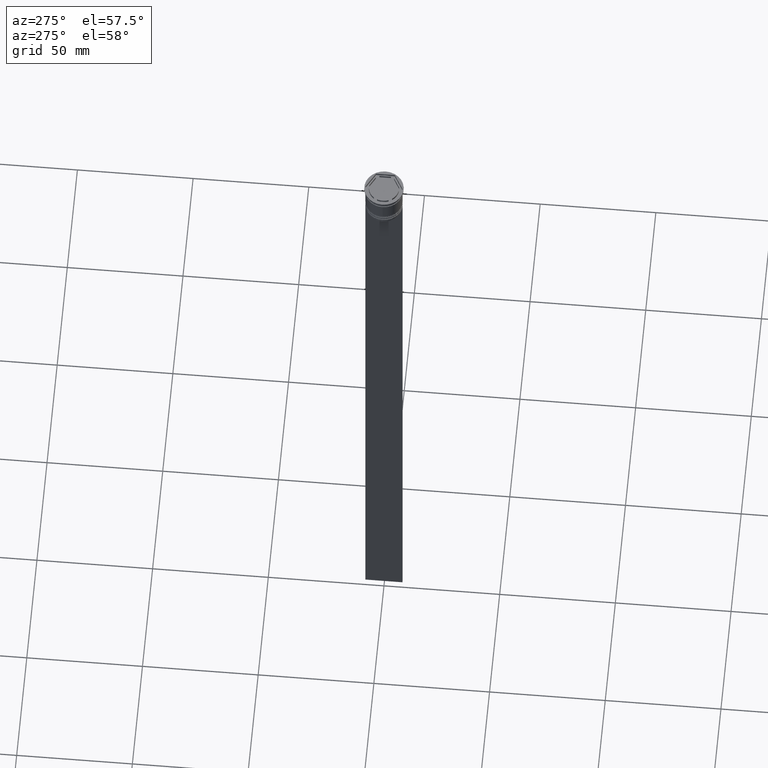
[diagram: clean part render]
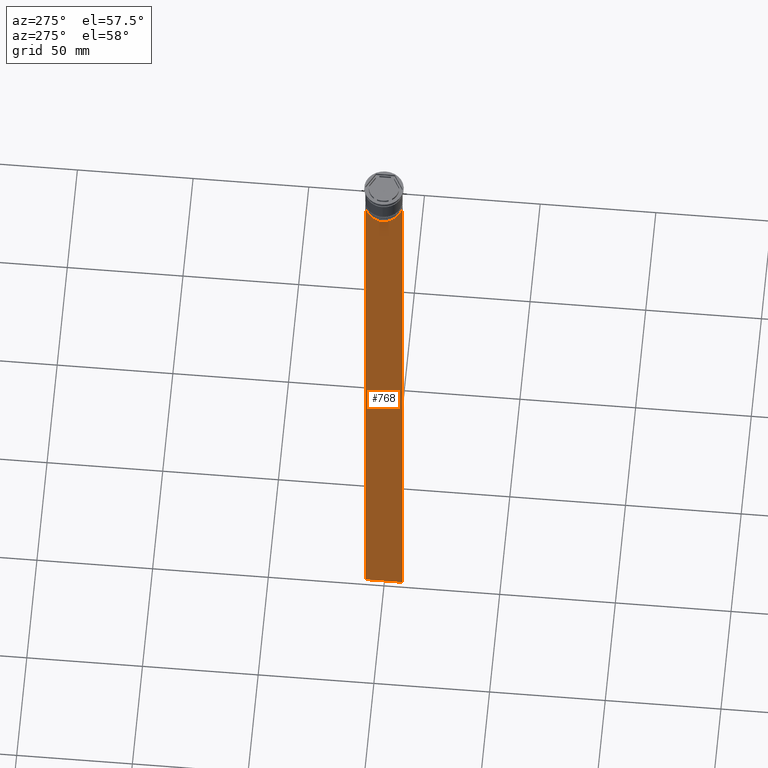
[diagram: same view with one face highlighted and labeled with its STEP entity id]
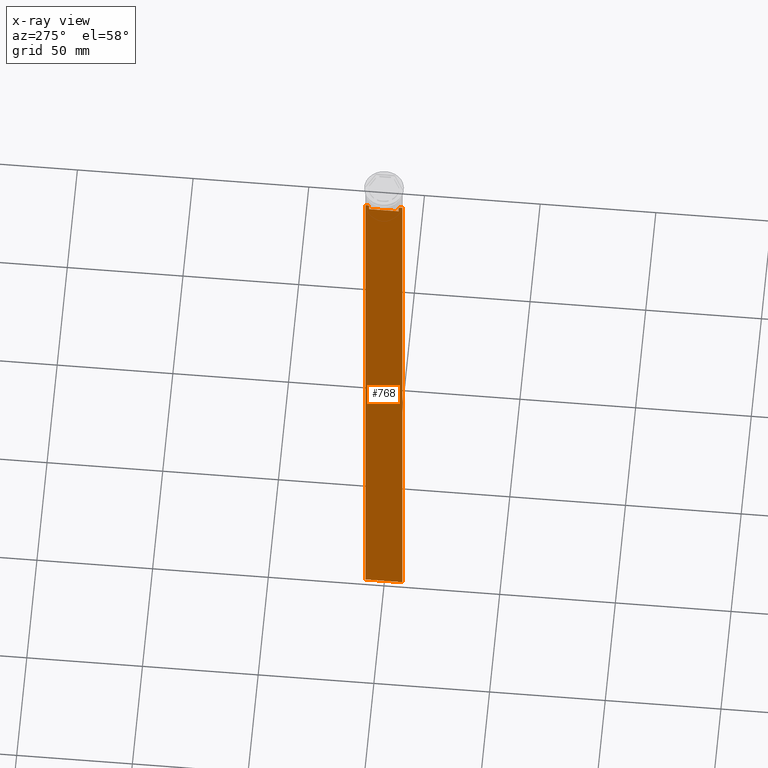
[diagram: x-ray of the same camera — body ghosted, the highlighted face saturated]
A machine part, auxiliary view. The second image highlights one B-rep face of the part: STEP entity #768.
The next image is the same camera in x-ray: the body ghosted, the highlighted face saturated — about 0% of this face is hidden behind the body in this view.
In plain terms, the highlighted planar face has unit normal (-1, 0, 0).
Its self-contained STEP definition (entity closure, byte-faithful):
#34 = DIRECTION ( 'NONE',  ( 0.000000000000000000, 0.000000000000000000, -1.000000000000000000 ) ) ;
#46 = VERTEX_POINT ( 'NONE', #1162 ) ;
#47 = CARTESIAN_POINT ( 'NONE',  ( -0.4999999999999998890, -6.714736947305992132, -14.16668390685738999 ) ) ;
#53 = LINE ( 'NONE', #257, #2484 ) ;
#57 = CARTESIAN_POINT ( 'NONE',  ( -0.4999999999999998890, -8.000000000000003553, -14.00000000000000178 ) ) ;
#59 = EDGE_CURVE ( 'NONE', #636, #2327, #1940, .T. ) ;
#82 = CARTESIAN_POINT ( 'NONE',  ( -0.4999999999999998890, 6.380438856379708312, -14.50000000000000000 ) ) ;
#101 = CARTESIAN_POINT ( 'NONE',  ( -0.4999999999999998890, -8.000000000000003553, -314.0000000000000000 ) ) ;
#102 = EDGE_CURVE ( 'NONE', #1215, #249, #484, .T. ) ;
#133 = CARTESIAN_POINT ( 'NONE',  ( -0.4999999999999998890, -6.881860213634098500, -14.00000000000000178 ) ) ;
#144 = DIRECTION ( 'NONE',  ( 0.000000000000000000, -1.000000000000000000, 0.000000000000000000 ) ) ;
#149 = CARTESIAN_POINT ( 'NONE',  ( -0.4999999999999998890, -8.000000000000003553, -14.00000000000000178 ) ) ;
#197 = VECTOR ( 'NONE', #2340, 1000.000000000000000 ) ;
#218 = CARTESIAN_POINT ( 'NONE',  ( -0.4999999999999998890, -8.000000000000003553, -14.00000000000000178 ) ) ;
#249 = VERTEX_POINT ( 'NONE', #2243 ) ;
#257 = CARTESIAN_POINT ( 'NONE',  ( -0.4999999999999998890, 6.399999999999999467, -17.00000000000000000 ) ) ;
#262 = CARTESIAN_POINT ( 'NONE',  ( -0.4999999999999998890, -6.380438856379708312, -14.50000000000000000 ) ) ;
#270 = ORIENTED_EDGE ( 'NONE', *, *, #1149, .F. ) ;
#319 = B_SPLINE_CURVE_WITH_KNOTS ( 'NONE', 3,
 ( #262, #810, #47, #1148 ),
 .UNSPECIFIED., .F., .F.,
 ( 4, 4 ),
 ( 0.02996184199614749730, 0.03067452609193703841 ),
 .UNSPECIFIED. ) ;
#329 = CARTESIAN_POINT ( 'NONE',  ( -0.4999999999999998890, -8.000000000000003553, -314.0000000000000000 ) ) ;
#337 = CARTESIAN_POINT ( 'NONE',  ( -0.4999999999999998890, 7.999999999999996447, -314.0000000000000000 ) ) ;
#350 = CARTESIAN_POINT ( 'NONE',  ( -0.4999999999999998890, -7.884161337770806632, -14.00000000000000178 ) ) ;
#398 = LINE ( 'NONE', #149, #722 ) ;
#425 = DIRECTION ( 'NONE',  ( 0.000000000000000000, 0.000000000000000000, -1.000000000000000000 ) ) ;
#462 = DIRECTION ( 'NONE',  ( -0.000000000000000000, -0.000000000000000000, 1.000000000000000000 ) ) ;
#481 = CARTESIAN_POINT ( 'NONE',  ( -0.4999999999999998890, 6.547597841304911626, -14.33335192459222718 ) ) ;
#484 = B_SPLINE_CURVE_WITH_KNOTS ( 'NONE', 3,
 ( #1795, #630, #481, #82 ),
 .UNSPECIFIED., .F., .F.,
 ( 4, 4 ),
 ( 0.01172465562756038263, 0.01243276816391822651 ),
 .UNSPECIFIED. ) ;
#485 = ORIENTED_EDGE ( 'NONE', *, *, #59, .F. ) ;
#510 = CARTESIAN_POINT ( 'NONE',  ( -0.4999999999999998890, 7.999999999999996447, 2.031219541881394530 ) ) ;
#557 = DIRECTION ( 'NONE',  ( 0.000000000000000000, -1.000000000000000000, 0.000000000000000000 ) ) ;
#580 = LINE ( 'NONE', #1927, #1635 ) ;
#630 = CARTESIAN_POINT ( 'NONE',  ( -0.4999999999999998890, 6.714736947114692711, -14.16668390704818847 ) ) ;
#636 = VERTEX_POINT ( 'NONE', #350 ) ;
#639 = DIRECTION ( 'NONE',  ( 0.000000000000000000, -1.000000000000000000, 0.000000000000000000 ) ) ;
#713 = VERTEX_POINT ( 'NONE', #1885 ) ;
#722 = VECTOR ( 'NONE', #557, 1000.000000000000000 ) ;
#740 = VERTEX_POINT ( 'NONE', #1178 ) ;
#768 = ADVANCED_FACE ( 'NONE', ( #783 ), #1956, .T. ) ;
#783 = FACE_OUTER_BOUND ( 'NONE', #1568, .T. ) ;
#810 = CARTESIAN_POINT ( 'NONE',  ( -0.4999999999999998890, -6.547597841511246131, -14.33335192438652328 ) ) ;
#832 = AXIS2_PLACEMENT_3D ( 'NONE', #2121, #1570, #1165 ) ;
#833 = VERTEX_POINT ( 'NONE', #2223 ) ;
#845 = ORIENTED_EDGE ( 'NONE', *, *, #1696, .F. ) ;
#863 = LINE ( 'NONE', #510, #1642 ) ;
#927 = VERTEX_POINT ( 'NONE', #133 ) ;
#939 = EDGE_CURVE ( 'NONE', #46, #1215, #2039, .T. ) ;
#1012 = ORIENTED_EDGE ( 'NONE', *, *, #2085, .F. ) ;
#1034 = ORIENTED_EDGE ( 'NONE', *, *, #1790, .T. ) ;
#1072 = VECTOR ( 'NONE', #2092, 1000.000000000000000 ) ;
#1148 = CARTESIAN_POINT ( 'NONE',  ( -0.4999999999999998890, -6.881860213634098500, -14.00000000000000178 ) ) ;
#1149 = EDGE_CURVE ( 'NONE', #2327, #2372, #580, .T. ) ;
#1150 = VECTOR ( 'NONE', #144, 1000.000000000000000 ) ;
#1162 = CARTESIAN_POINT ( 'NONE',  ( -0.4999999999999998890, 7.884161337770806632, -14.00000000000000178 ) ) ;
#1165 = DIRECTION ( 'NONE',  ( 0.000000000000000000, 0.000000000000000000, 1.000000000000000000 ) ) ;
#1167 = LINE ( 'NONE', #2494, #1998 ) ;
#1169 = VERTEX_POINT ( 'NONE', #1281 ) ;
#1177 = LINE ( 'NONE', #1569, #2442 ) ;
#1178 = CARTESIAN_POINT ( 'NONE',  ( -0.4999999999999998890, 7.999999999999996447, -14.00000000000000178 ) ) ;
#1184 = VERTEX_POINT ( 'NONE', #337 ) ;
#1215 = VERTEX_POINT ( 'NONE', #2460 ) ;
#1259 = EDGE_CURVE ( 'NONE', #927, #636, #1167, .T. ) ;
#1264 = ORIENTED_EDGE ( 'NONE', *, *, #2102, .F. ) ;
#1281 = CARTESIAN_POINT ( 'NONE',  ( -0.4999999999999998890, -6.380438856379708312, -14.50000000000000000 ) ) ;
#1298 = ORIENTED_EDGE ( 'NONE', *, *, #939, .F. ) ;
#1377 = ORIENTED_EDGE ( 'NONE', *, *, #1259, .F. ) ;
#1396 = EDGE_CURVE ( 'NONE', #833, #1169, #1820, .T. ) ;
#1509 = VECTOR ( 'NONE', #462, 1000.000000000000000 ) ;
#1568 = EDGE_LOOP ( 'NONE', ( #2313, #1298, #1695, #1034, #845, #270, #485, #1377, #1012, #2101, #2190, #1264 ) ) ;
#1569 = CARTESIAN_POINT ( 'NONE',  ( -0.4999999999999998890, 6.380438856379708312, 0.000000000000000000 ) ) ;
#1570 = DIRECTION ( 'NONE',  ( -1.000000000000000000, 0.000000000000000000, 0.000000000000000000 ) ) ;
#1635 = VECTOR ( 'NONE', #425, 1000.000000000000000 ) ;
#1642 = VECTOR ( 'NONE', #2338, 1000.000000000000000 ) ;
#1695 = ORIENTED_EDGE ( 'NONE', *, *, #1920, .F. ) ;
#1696 = EDGE_CURVE ( 'NONE', #2372, #1184, #2197, .T. ) ;
#1790 = EDGE_CURVE ( 'NONE', #740, #1184, #863, .T. ) ;
#1795 = CARTESIAN_POINT ( 'NONE',  ( -0.4999999999999998890, 6.881860213634098500, -14.00000000000000178 ) ) ;
#1820 = LINE ( 'NONE', #1974, #1509 ) ;
#1855 = EDGE_CURVE ( 'NONE', #713, #833, #53, .T. ) ;
#1885 = CARTESIAN_POINT ( 'NONE',  ( -0.4999999999999998890, 6.380438856379708312, -17.00000000000000000 ) ) ;
#1920 = EDGE_CURVE ( 'NONE', #740, #46, #398, .T. ) ;
#1927 = CARTESIAN_POINT ( 'NONE',  ( -0.4999999999999998890, -8.000000000000003553, 2.031219541881394530 ) ) ;
#1940 = LINE ( 'NONE', #218, #197 ) ;
#1945 = DIRECTION ( 'NONE',  ( 0.000000000000000000, -1.000000000000000000, 0.000000000000000000 ) ) ;
#1956 = PLANE ( 'NONE',  #832 ) ;
#1974 = CARTESIAN_POINT ( 'NONE',  ( -0.4999999999999998890, -6.380438856379708312, 0.000000000000000000 ) ) ;
#1998 = VECTOR ( 'NONE', #1945, 1000.000000000000000 ) ;
#2039 = LINE ( 'NONE', #2066, #1150 ) ;
#2066 = CARTESIAN_POINT ( 'NONE',  ( -0.4999999999999998890, -8.000000000000003553, -14.00000000000000178 ) ) ;
#2085 = EDGE_CURVE ( 'NONE', #1169, #927, #319, .T. ) ;
#2092 = DIRECTION ( 'NONE',  ( 0.000000000000000000, 1.000000000000000000, 0.000000000000000000 ) ) ;
#2101 = ORIENTED_EDGE ( 'NONE', *, *, #1396, .F. ) ;
#2102 = EDGE_CURVE ( 'NONE', #249, #713, #1177, .T. ) ;
#2121 = CARTESIAN_POINT ( 'NONE',  ( -0.4999999999999998890, -8.000000000000003553, 2.031219541881394530 ) ) ;
#2190 = ORIENTED_EDGE ( 'NONE', *, *, #1855, .F. ) ;
#2197 = LINE ( 'NONE', #101, #1072 ) ;
#2223 = CARTESIAN_POINT ( 'NONE',  ( -0.4999999999999998890, -6.380438856379708312, -17.00000000000000000 ) ) ;
#2243 = CARTESIAN_POINT ( 'NONE',  ( -0.4999999999999998890, 6.380438856379708312, -14.50000000000000000 ) ) ;
#2313 = ORIENTED_EDGE ( 'NONE', *, *, #102, .F. ) ;
#2327 = VERTEX_POINT ( 'NONE', #57 ) ;
#2338 = DIRECTION ( 'NONE',  ( 0.000000000000000000, 0.000000000000000000, -1.000000000000000000 ) ) ;
#2340 = DIRECTION ( 'NONE',  ( 0.000000000000000000, -1.000000000000000000, 0.000000000000000000 ) ) ;
#2372 = VERTEX_POINT ( 'NONE', #329 ) ;
#2442 = VECTOR ( 'NONE', #34, 1000.000000000000000 ) ;
#2460 = CARTESIAN_POINT ( 'NONE',  ( -0.4999999999999998890, 6.881860213634098500, -14.00000000000000178 ) ) ;
#2484 = VECTOR ( 'NONE', #639, 1000.000000000000000 ) ;
#2494 = CARTESIAN_POINT ( 'NONE',  ( -0.4999999999999998890, -8.000000000000003553, -14.00000000000000178 ) ) ;